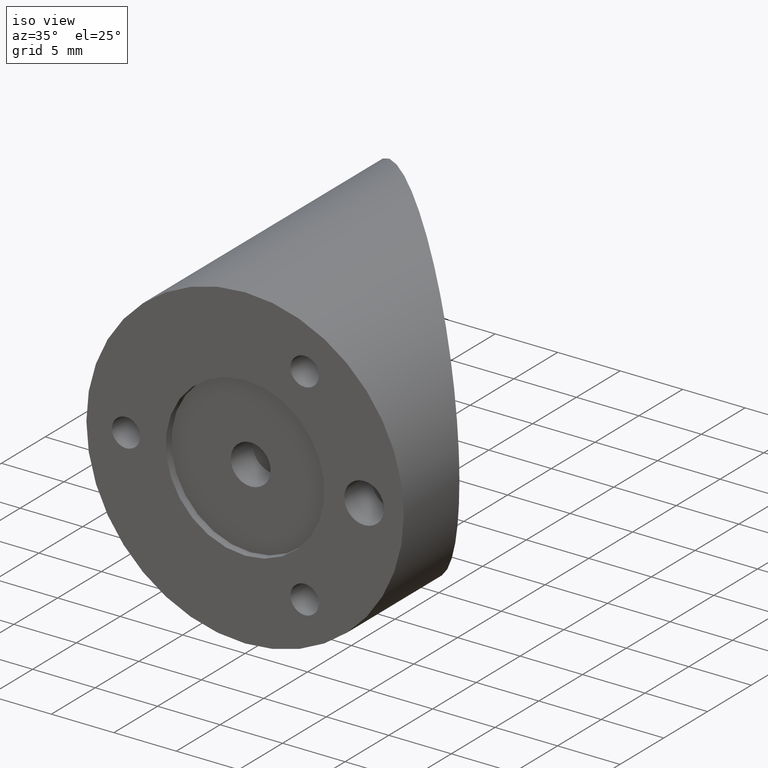
[diagram: clean part render]
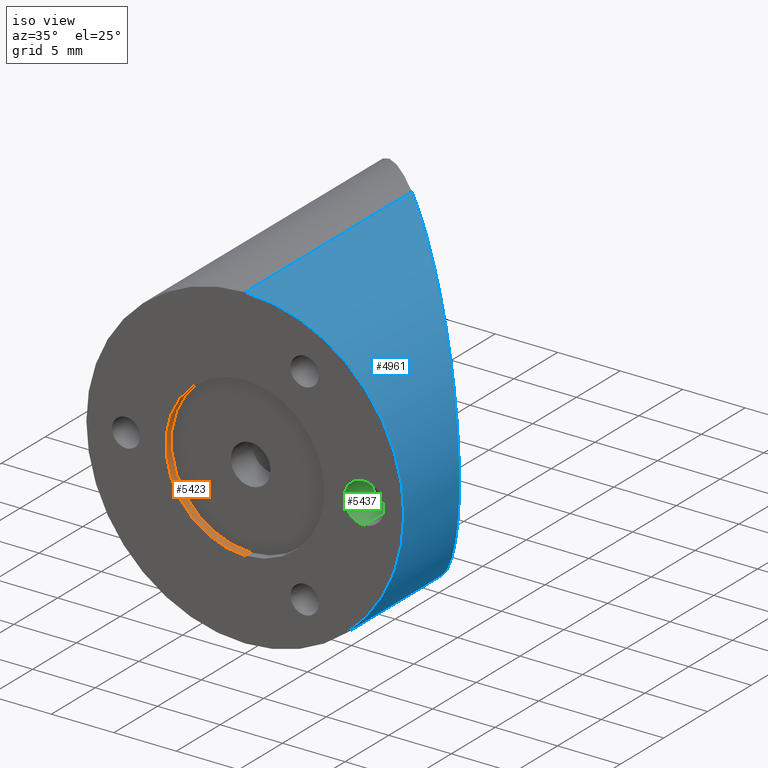
[diagram: same view with three faces highlighted in distinct colors, each labeled with its STEP entity id]
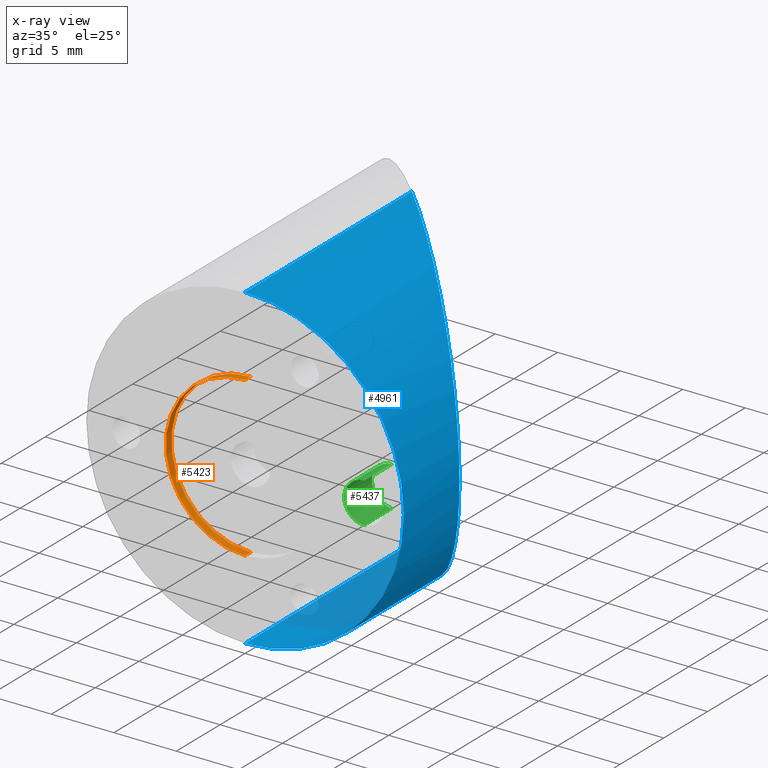
[diagram: x-ray of the same camera — body ghosted, the three highlighted faces saturated]
A machine part, iso view with three faces highlighted in distinct colors.
The next image is the same camera in x-ray (body ghosted, the three faces saturated) — at least one of them is partly hidden behind the body in this view.
Their STEP definitions:

[orange] entity #5423 — the highlighted cylindrical surface (partial cylindrical patch) has radius 6.35 mm, axis along (0, -1, 0).
#3547 = AXIS2_PLACEMENT_3D ( 'NONE', #3583, #3610, #3609 ) ;
#3576 = CIRCLE ( 'NONE', #3547, 6.349999999999999600 ) ;
#3583 = CARTESIAN_POINT ( 'NONE',  ( 0.0000000000000000000, 0.6350000000000000100, 0.0000000000000000000 ) ) ;
#3584 = DIRECTION ( 'NONE',  ( 0.0000000000000000000, -1.000000000000000000, 0.0000000000000000000 ) ) ;
#3585 = VECTOR ( 'NONE', #3584, 1000.000000000000000 ) ;
#3586 = CARTESIAN_POINT ( 'NONE',  ( 7.776507174585692200E-016, 0.6350000000000000100, 6.349999999999999600 ) ) ;
#3587 = LINE ( 'NONE', #3586, #3585 ) ;
#3609 = DIRECTION ( 'NONE',  ( 0.0000000000000000000, 0.0000000000000000000, 1.000000000000000000 ) ) ;
#3610 = DIRECTION ( 'NONE',  ( 0.0000000000000000000, 1.000000000000000000, 0.0000000000000000000 ) ) ;
#3641 = DIRECTION ( 'NONE',  ( 0.0000000000000000000, -1.000000000000000000, 0.0000000000000000000 ) ) ;
#3642 = VECTOR ( 'NONE', #3641, 1000.000000000000000 ) ;
#3643 = DIRECTION ( 'NONE',  ( 0.0000000000000000000, 0.0000000000000000000, 1.000000000000000000 ) ) ;
#3644 = DIRECTION ( 'NONE',  ( 0.0000000000000000000, 1.000000000000000000, 0.0000000000000000000 ) ) ;
#3645 = CARTESIAN_POINT ( 'NONE',  ( 0.0000000000000000000, 0.0000000000000000000, 0.0000000000000000000 ) ) ;
#3646 = AXIS2_PLACEMENT_3D ( 'NONE', #3645, #3644, #3643 ) ;
#3647 = CIRCLE ( 'NONE', #3646, 6.349999999999999600 ) ;
#3648 = CARTESIAN_POINT ( 'NONE',  ( 0.0000000000000000000, 0.6350000000000000100, -6.349999999999999600 ) ) ;
#3649 = LINE ( 'NONE', #3648, #3642 ) ;
#3871 = CARTESIAN_POINT ( 'NONE',  ( 0.0000000000000000000, 0.6350000000000000100, -6.349999999999999600 ) ) ;
#3878 = CARTESIAN_POINT ( 'NONE',  ( 7.776507174585692200E-016, 0.6350000000000000100, 6.349999999999999600 ) ) ;
#3930 = CARTESIAN_POINT ( 'NONE',  ( 7.776507174585692200E-016, 0.0000000000000000000, 6.349999999999999600 ) ) ;
#3936 = CARTESIAN_POINT ( 'NONE',  ( 0.0000000000000000000, 0.0000000000000000000, -6.349999999999999600 ) ) ;
#3956 = DIRECTION ( 'NONE',  ( 0.0000000000000000000, 0.0000000000000000000, -1.000000000000000000 ) ) ;
#3959 = DIRECTION ( 'NONE',  ( 0.0000000000000000000, -1.000000000000000000, 0.0000000000000000000 ) ) ;
#3960 = CARTESIAN_POINT ( 'NONE',  ( 0.0000000000000000000, 0.6350000000000000100, 0.0000000000000000000 ) ) ;
#3961 = FACE_OUTER_BOUND ( 'NONE', #5432, .T. ) ;
#3967 = CYLINDRICAL_SURFACE ( 'NONE', #3972, 6.349999999999999600 ) ;
#3972 = AXIS2_PLACEMENT_3D ( 'NONE', #3960, #3959, #3956 ) ;
#5351 = ORIENTED_EDGE ( 'NONE', *, *, #5353, .T. ) ;
#5352 = EDGE_CURVE ( 'NONE', #5391, #5412, #3587, .T. ) ;
#5353 = EDGE_CURVE ( 'NONE', #5396, #5391, #3576, .T. ) ;
#5355 = EDGE_CURVE ( 'NONE', #5411, #5412, #3647, .T. ) ;
#5356 = EDGE_CURVE ( 'NONE', #5396, #5411, #3649, .T. ) ;
#5391 = VERTEX_POINT ( 'NONE', #3878 ) ;
#5396 = VERTEX_POINT ( 'NONE', #3871 ) ;
#5411 = VERTEX_POINT ( 'NONE', #3936 ) ;
#5412 = VERTEX_POINT ( 'NONE', #3930 ) ;
#5423 = ADVANCED_FACE ( 'NONE', ( #3961 ), #3967, .F. ) ;
#5424 = ORIENTED_EDGE ( 'NONE', *, *, #5352, .T. ) ;
#5431 = ORIENTED_EDGE ( 'NONE', *, *, #5355, .F. ) ;
#5432 = EDGE_LOOP ( 'NONE', ( #5351, #5424, #5431, #5435 ) ) ;
#5435 = ORIENTED_EDGE ( 'NONE', *, *, #5356, .F. ) ;

[blue] entity #4961 — the highlighted cylindrical surface (partial cylindrical patch) has radius 12.7 mm, axis along (-0, -1, -0).
#1970 = DIRECTION ( 'NONE',  ( 0.0000000000000000000, 0.0000000000000000000, -1.000000000000000000 ) ) ;
#1971 = DIRECTION ( 'NONE',  ( -0.0000000000000000000, -1.000000000000000000, -0.0000000000000000000 ) ) ;
#1972 = CARTESIAN_POINT ( 'NONE',  ( 0.0000000000000000000, 36.68999999999999800, 0.0000000000000000000 ) ) ;
#1973 = AXIS2_PLACEMENT_3D ( 'NONE', #1972, #1971, #1970 ) ;
#1976 = CYLINDRICAL_SURFACE ( 'NONE', #1973, 12.69999999999999900 ) ;
#1982 = FACE_OUTER_BOUND ( 'NONE', #5016, .T. ) ;
#2371 = CARTESIAN_POINT ( 'NONE',  ( 0.0000000000000000000, 0.0000000000000000000, -12.69999999999999900 ) ) ;
#2374 = AXIS2_PLACEMENT_3D ( 'NONE', #2457, #2449, #2448 ) ;
#2406 = CARTESIAN_POINT ( 'NONE',  ( 1.555301434917138400E-015, 0.0000000000000000000, 12.69999999999999900 ) ) ;
#2437 = CIRCLE ( 'NONE', #2374, 12.69999999999999900 ) ;
#2439 = DIRECTION ( 'NONE',  ( -0.0000000000000000000, -1.000000000000000000, -0.0000000000000000000 ) ) ;
#2440 = VECTOR ( 'NONE', #2439, 1000.000000000000000 ) ;
#2441 = CARTESIAN_POINT ( 'NONE',  ( 1.555301434917138400E-015, 36.68999999999999800, 12.69999999999999900 ) ) ;
#2446 = LINE ( 'NONE', #2441, #2440 ) ;
#2448 = DIRECTION ( 'NONE',  ( 0.0000000000000000000, 0.0000000000000000000, 1.000000000000000000 ) ) ;
#2449 = DIRECTION ( 'NONE',  ( 0.0000000000000000000, 1.000000000000000000, 0.0000000000000000000 ) ) ;
#2452 = CARTESIAN_POINT ( 'NONE',  ( 1.073295098630292200E-011, 19.05375000000564300, -12.69999999999971300 ) ) ;
#2453 = DIRECTION ( 'NONE',  ( -0.0000000000000000000, -1.000000000000000000, -0.0000000000000000000 ) ) ;
#2454 = VECTOR ( 'NONE', #2453, 1000.000000000000000 ) ;
#2455 = CARTESIAN_POINT ( 'NONE',  ( 0.0000000000000000000, 36.68999999999999800, -12.69999999999999900 ) ) ;
#2456 = LINE ( 'NONE', #2455, #2454 ) ;
#2457 = CARTESIAN_POINT ( 'NONE',  ( 0.0000000000000000000, 0.0000000000000000000, 0.0000000000000000000 ) ) ;
#2800 = CARTESIAN_POINT ( 'NONE',  ( 6.599079892768514800, 12.45467010724806300, -10.85764775449460000 ) ) ;
#2801 = CARTESIAN_POINT ( 'NONE',  ( 6.928482112657713200, 12.12526788735882000, -10.65076011736241800 ) ) ;
#2802 = CARTESIAN_POINT ( 'NONE',  ( 7.569888742416192300, 11.48386125760033800, -10.20486844062462400 ) ) ;
#2803 = CARTESIAN_POINT ( 'NONE',  ( 7.883226184303367700, 11.17052381571272200, -9.965160907898976500 ) ) ;
#2804 = CARTESIAN_POINT ( 'NONE',  ( 8.799572855978244200, 10.25417714403784500, -9.192185024529719000 ) ) ;
#2805 = CARTESIAN_POINT ( 'NONE',  ( 9.379392896092035400, 9.674357103924661400, -8.606147625308180300 ) ) ;
#2806 = CARTESIAN_POINT ( 'NONE',  ( 10.46006282811218000, 8.593687171904514700, -7.254369282012405900 ) ) ;
#2807 = CARTESIAN_POINT ( 'NONE',  ( 10.94358882695890900, 8.110161173057456100, -6.509932970497108500 ) ) ;
#2808 = CARTESIAN_POINT ( 'NONE',  ( 11.45986508102121500, 7.593884918995141400, -5.478567564210533400 ) ) ;
#2809 = CARTESIAN_POINT ( 'NONE',  ( 11.55868350159210700, 7.495066498424801400, -5.267139652423518100 ) ) ;
#2810 = CARTESIAN_POINT ( 'NONE',  ( 11.74675885290316500, 7.306991147113746100, -4.833175028886379300 ) ) ;
#2811 = CARTESIAN_POINT ( 'NONE',  ( 11.83622547510302600, 7.217524524912693800, -4.609958047788526700 ) ) ;
#2812 = CARTESIAN_POINT ( 'NONE',  ( 12.08551602448123100, 6.968233975534488400, -3.932186315710369100 ) ) ;
#2813 = CARTESIAN_POINT ( 'NONE',  ( 12.22749506670874800, 6.826254933307229300, -3.467185301981261500 ) ) ;
#2814 = CARTESIAN_POINT ( 'NONE',  ( 12.40147096061078900, 6.652279039405190300, -2.748503300757524100 ) ) ;
#2815 = CARTESIAN_POINT ( 'NONE',  ( 12.45294631151671700, 6.600803688498941400, -2.505402865495646400 ) ) ;
#2818 = CARTESIAN_POINT ( 'NONE',  ( 12.54216144430636400, 6.511588555709297000, -2.011740952733863400 ) ) ;
#2819 = CARTESIAN_POINT ( 'NONE',  ( 12.57995465248147400, 6.473795347535727300, -1.760284237810619200 ) ) ;
#2820 = CARTESIAN_POINT ( 'NONE',  ( 12.67005505108533100, 6.383694948931870200, -1.007543362733651200 ) ) ;
#2821 = CARTESIAN_POINT ( 'NONE',  ( 12.70000000000087100, 6.353750000015508300, -0.5044172806110095400 ) ) ;
#2822 = CARTESIAN_POINT ( 'NONE',  ( 12.70000000000023400, 6.353750000016145100, 1.602868948680232200E-011 ) ) ;
#2823 = B_SPLINE_CURVE_WITH_KNOTS ( 'NONE', 3,
 ( #2822, #2821, #2820, #2819, #2818, #2815, #2814, #2813, #2812, #2811, #2810, #2809, #2808, #2807, #2806, #2805, #2804, #2803, #2802, #2801, #2800, #2859, #2858, #2857, #2856, #2855, #2854, #2853, #2852, #2851 ),
 .UNSPECIFIED., .F., .F.,
 ( 4, 2, 2, 2, 2, 2, 2, 2, 2, 2, 2, 2, 2, 2, 4 ),
 ( 0.04838798220624486400, 0.04989858502457449100, 0.05065388643373930400, 0.05140918784290411000, 0.05291979066123373600, 0.05367509207039854900, 0.05443039347956335500, 0.05745159911622260700, 0.06047280475288185900, 0.06198340757121148500, 0.06349401038954111100, 0.06651521602620034900, 0.06953642166285958800, 0.07104702448118921400, 0.07255762729951884000 ),
 .UNSPECIFIED. ) ;
#2851 = CARTESIAN_POINT ( 'NONE',  ( 1.073295098630292200E-011, 19.05375000000564300, -12.69999999999971300 ) ) ;
#2852 = CARTESIAN_POINT ( 'NONE',  ( 0.3559999177338322200, 18.69775008228256800, -12.69999999999968300 ) ) ;
#2853 = CARTESIAN_POINT ( 'NONE',  ( 0.7128693906184230300, 18.34088060939783600, -12.68505918974863000 ) ) ;
#2854 = CARTESIAN_POINT ( 'NONE',  ( 1.428392377802600600, 17.62535762221365600, -12.62452393678835900 ) ) ;
#2855 = CARTESIAN_POINT ( 'NONE',  ( 1.786133609362762200, 17.26761639065324500, -12.57890556704122900 ) ) ;
#2856 = CARTESIAN_POINT ( 'NONE',  ( 2.848788593822412000, 16.20496140619359700, -12.39721572321217900 ) ) ;
#2857 = CARTESIAN_POINT ( 'NONE',  ( 3.547234450087773300, 15.50651554992862200, -12.21636932480826600 ) ) ;
#2858 = CARTESIAN_POINT ( 'NONE',  ( 4.923209024338469000, 14.13054097567792800, -11.72964469311318300 ) ) ;
#2859 = CARTESIAN_POINT ( 'NONE',  ( 5.600770071422214600, 13.45297992859436900, -11.42395970643810400 ) ) ;
#3793 = CARTESIAN_POINT ( 'NONE',  ( -1.753263333126320700E-012, 19.05375000001852100, 12.70000000000025000 ) ) ;
#3863 = CARTESIAN_POINT ( 'NONE',  ( 1.425506101229625500, 17.62824389878650100, 12.62482813555862800 ) ) ;
#3864 = CARTESIAN_POINT ( 'NONE',  ( 0.7115186284303928200, 18.34223137158572900, 12.68511309915808700 ) ) ;
#3865 = CARTESIAN_POINT ( 'NONE',  ( 0.3553545233585980200, 18.69839547665814500, 12.70000000000005800 ) ) ;
#3866 = CARTESIAN_POINT ( 'NONE',  ( -1.753263333126320700E-012, 19.05375000001852100, 12.70000000000025000 ) ) ;
#3867 = B_SPLINE_CURVE_WITH_KNOTS ( 'NONE', 3,
 ( #3866, #3865, #3864, #3863, #3919, #3918, #3917, #3916, #3915, #3914, #3913, #3912, #3911, #3910, #3909, #3908, #3907, #3906, #3905, #3904, #3903, #3902, #3901, #3900, #3899, #3898, #3897, #3896, #3895, #3894 ),
 .UNSPECIFIED., .F., .F.,
 ( 4, 2, 2, 2, 2, 2, 2, 2, 2, 2, 2, 2, 2, 2, 4 ),
 ( 0.02419946178127503600, 0.02571124430783565400, 0.02722302683439627200, 0.03024659188751749700, 0.03327015694063872200, 0.03478193946719933300, 0.03629372199375995000, 0.03931728704688117900, 0.04082906957344179000, 0.04234085210000240700, 0.04385263462656302500, 0.04536441715312364300, 0.04687619967968425400, 0.04763209094296455600, 0.04838798220624486400 ),
 .UNSPECIFIED. ) ;
#3894 = CARTESIAN_POINT ( 'NONE',  ( 12.70000000000023400, 6.353750000016145100, 1.602868948680232200E-011 ) ) ;
#3895 = CARTESIAN_POINT ( 'NONE',  ( 12.69999999999991800, 6.353750000016464800, 0.2524056031614154100 ) ) ;
#3896 = CARTESIAN_POINT ( 'NONE',  ( 12.69248225410692000, 6.361267745910270200, 0.5051353645574104800 ) ) ;
#3897 = CARTESIAN_POINT ( 'NONE',  ( 12.66221297392122700, 6.391537026095974700, 1.011251754216921700 ) ) ;
#3898 = CARTESIAN_POINT ( 'NONE',  ( 12.63931500635822800, 6.414434993658104200, 1.265761365832677000 ) ) ;
#3899 = CARTESIAN_POINT ( 'NONE',  ( 12.54830468945343300, 6.505445310562894400, 2.021828895184285500 ) ) ;
#3900 = CARTESIAN_POINT ( 'NONE',  ( 12.45874381187088700, 6.595006188146864900, 2.512321702090750900 ) ) ;
#3901 = CARTESIAN_POINT ( 'NONE',  ( 12.22704340532995800, 6.826706594687794700, 3.468640550533373300 ) ) ;
#3902 = CARTESIAN_POINT ( 'NONE',  ( 12.08487534965748200, 6.968874650358878300, 3.934453209037877200 ) ) ;
#3903 = CARTESIAN_POINT ( 'NONE',  ( 11.75046716739118800, 7.303282832625170000, 4.842587698630669700 ) ) ;
#3904 = CARTESIAN_POINT ( 'NONE',  ( 11.56201975668329900, 7.491730243333476500, 5.274679716940131200 ) ) ;
#3905 = CARTESIAN_POINT ( 'NONE',  ( 11.14913429996790300, 7.904615700048874600, 6.099127095864925100 ) ) ;
#3906 = CARTESIAN_POINT ( 'NONE',  ( 10.92453857279676800, 8.129211427220338800, 6.491774042989980800 ) ) ;
#3907 = CARTESIAN_POINT ( 'NONE',  ( 10.44253972988088800, 8.611210270136227900, 7.241687458294664200 ) ) ;
#3908 = CARTESIAN_POINT ( 'NONE',  ( 10.18359195560270300, 8.870158044412653100, 7.600653494619119300 ) ) ;
#3909 = CARTESIAN_POINT ( 'NONE',  ( 9.376145998089699100, 9.677604001925651300, 8.609285735563714700 ) ) ;
#3910 = CARTESIAN_POINT ( 'NONE',  ( 8.795961604366123500, 10.25778839565007200, 9.195963059963208500 ) ) ;
#3911 = CARTESIAN_POINT ( 'NONE',  ( 7.874827980435712900, 11.17892201958048500, 9.971873122185888500 ) ) ;
#3912 = CARTESIAN_POINT ( 'NONE',  ( 7.558758466611337200, 11.49499153340523000, 10.21322209351403000 ) ) ;
#3913 = CARTESIAN_POINT ( 'NONE',  ( 6.912196568876535000, 12.14155343114003200, 10.66143863093640400 ) ) ;
#3914 = CARTESIAN_POINT ( 'NONE',  ( 6.585142786169006600, 12.46860721384716400, 10.86600459586555300 ) ) ;
#3915 = CARTESIAN_POINT ( 'NONE',  ( 5.593803949766870800, 13.45994605024929000, 11.42698573281844800 ) ) ;
#3916 = CARTESIAN_POINT ( 'NONE',  ( 4.919424675196721000, 14.13432532482010000, 11.73111545066778300 ) ) ;
#3917 = CARTESIAN_POINT ( 'NONE',  ( 3.546914930869681900, 15.50683506914715100, 12.21634983638748500 ) ) ;
#3918 = CARTESIAN_POINT ( 'NONE',  ( 2.848753924762737400, 16.20499607525341500, 12.39729633385144500 ) ) ;
#3919 = CARTESIAN_POINT ( 'NONE',  ( 1.784229245425802000, 17.26952075459036400, 12.57919372726496100 ) ) ;
#4186 = CARTESIAN_POINT ( 'NONE',  ( 12.70000000000023400, 6.353750000016145100, 1.602868948680232200E-011 ) ) ;
#4916 = ORIENTED_EDGE ( 'NONE', *, *, #5152, .T. ) ;
#4961 = ADVANCED_FACE ( 'NONE', ( #1982 ), #1976, .T. ) ;
#4962 = ORIENTED_EDGE ( 'NONE', *, *, #5394, .F. ) ;
#5016 = EDGE_LOOP ( 'NONE', ( #4962, #4916, #5151, #5198, #5147 ) ) ;
#5141 = VERTEX_POINT ( 'NONE', #2371 ) ;
#5142 = VERTEX_POINT ( 'NONE', #2406 ) ;
#5143 = EDGE_CURVE ( 'NONE', #5150, #5141, #2456, .T. ) ;
#5144 = EDGE_CURVE ( 'NONE', #5142, #5141, #2437, .T. ) ;
#5147 = ORIENTED_EDGE ( 'NONE', *, *, #5199, .F. ) ;
#5150 = VERTEX_POINT ( 'NONE', #2452 ) ;
#5151 = ORIENTED_EDGE ( 'NONE', *, *, #5144, .T. ) ;
#5152 = EDGE_CURVE ( 'NONE', #5395, #5142, #2446, .T. ) ;
#5198 = ORIENTED_EDGE ( 'NONE', *, *, #5143, .F. ) ;
#5199 = EDGE_CURVE ( 'NONE', #5487, #5150, #2823, .T. ) ;
#5394 = EDGE_CURVE ( 'NONE', #5395, #5487, #3867, .T. ) ;
#5395 = VERTEX_POINT ( 'NONE', #3793 ) ;
#5487 = VERTEX_POINT ( 'NONE', #4186 ) ;

[green] entity #5437 — the highlighted cylindrical surface (edge-blend (fillet) strip) has radius 1.5939 mm, axis along (0, -1, 0).
#3263 = DIRECTION ( 'NONE',  ( 0.0000000000000000000, 1.000000000000000000, 0.0000000000000000000 ) ) ;
#3265 = DIRECTION ( 'NONE',  ( 0.0000000000000000000, 0.0000000000000000000, 1.000000000000000000 ) ) ;
#3637 = DIRECTION ( 'NONE',  ( 0.0000000000000000000, -1.000000000000000000, 0.0000000000000000000 ) ) ;
#3638 = VECTOR ( 'NONE', #3637, 1000.000000000000000 ) ;
#3639 = CARTESIAN_POINT ( 'NONE',  ( 9.524999999999998600, 3.174999999999999800, -1.593850000000001500 ) ) ;
#3640 = LINE ( 'NONE', #3639, #3638 ) ;
#3949 = CARTESIAN_POINT ( 'NONE',  ( 9.524999999999998600, 3.174999999999999800, -1.593850000000001500 ) ) ;
#3971 = CARTESIAN_POINT ( 'NONE',  ( 9.524999999999998600, 0.0000000000000000000, 1.593850000000001500 ) ) ;
#3977 = CIRCLE ( 'NONE', #4022, 1.593850000000001500 ) ;
#4017 = CARTESIAN_POINT ( 'NONE',  ( 9.524999999999998600, 3.174999999999999800, 0.0000000000000000000 ) ) ;
#4018 = AXIS2_PLACEMENT_3D ( 'NONE', #4017, #3263, #3265 ) ;
#4019 = DIRECTION ( 'NONE',  ( 0.0000000000000000000, 0.0000000000000000000, 1.000000000000000000 ) ) ;
#4020 = DIRECTION ( 'NONE',  ( 0.0000000000000000000, 1.000000000000000000, 0.0000000000000000000 ) ) ;
#4021 = CARTESIAN_POINT ( 'NONE',  ( 9.524999999999998600, 0.0000000000000000000, 0.0000000000000000000 ) ) ;
#4022 = AXIS2_PLACEMENT_3D ( 'NONE', #4021, #4020, #4019 ) ;
#4023 = CIRCLE ( 'NONE', #4018, 1.593850000000001500 ) ;
#4031 = DIRECTION ( 'NONE',  ( 0.0000000000000000000, -1.000000000000000000, 0.0000000000000000000 ) ) ;
#4032 = VECTOR ( 'NONE', #4031, 1000.000000000000000 ) ;
#4033 = CARTESIAN_POINT ( 'NONE',  ( 9.524999999999998600, 3.174999999999999800, 1.593850000000001500 ) ) ;
#4034 = LINE ( 'NONE', #4033, #4032 ) ;
#4035 = CARTESIAN_POINT ( 'NONE',  ( 9.524999999999998600, 0.0000000000000000000, -1.593850000000001500 ) ) ;
#4037 = CARTESIAN_POINT ( 'NONE',  ( 9.524999999999998600, 3.174999999999999800, 1.593850000000001500 ) ) ;
#4038 = DIRECTION ( 'NONE',  ( 0.0000000000000000000, 0.0000000000000000000, -1.000000000000000000 ) ) ;
#4039 = DIRECTION ( 'NONE',  ( 0.0000000000000000000, -1.000000000000000000, 0.0000000000000000000 ) ) ;
#4040 = CARTESIAN_POINT ( 'NONE',  ( 9.524999999999998600, 3.174999999999999800, 0.0000000000000000000 ) ) ;
#4046 = AXIS2_PLACEMENT_3D ( 'NONE', #4040, #4039, #4038 ) ;
#4047 = CYLINDRICAL_SURFACE ( 'NONE', #4046, 1.593850000000001500 ) ;
#4048 = FACE_OUTER_BOUND ( 'NONE', #5358, .T. ) ;
#5357 = EDGE_CURVE ( 'NONE', #5420, #5443, #3640, .T. ) ;
#5358 = EDGE_LOOP ( 'NONE', ( #5439, #5444, #5447, #5445 ) ) ;
#5415 = VERTEX_POINT ( 'NONE', #3971 ) ;
#5420 = VERTEX_POINT ( 'NONE', #3949 ) ;
#5434 = EDGE_CURVE ( 'NONE', #5443, #5415, #3977, .T. ) ;
#5436 = EDGE_CURVE ( 'NONE', #5420, #5438, #4023, .T. ) ;
#5437 = ADVANCED_FACE ( 'NONE', ( #4048 ), #4047, .F. ) ;
#5438 = VERTEX_POINT ( 'NONE', #4037 ) ;
#5439 = ORIENTED_EDGE ( 'NONE', *, *, #5436, .T. ) ;
#5440 = EDGE_CURVE ( 'NONE', #5438, #5415, #4034, .T. ) ;
#5443 = VERTEX_POINT ( 'NONE', #4035 ) ;
#5444 = ORIENTED_EDGE ( 'NONE', *, *, #5440, .T. ) ;
#5445 = ORIENTED_EDGE ( 'NONE', *, *, #5357, .F. ) ;
#5447 = ORIENTED_EDGE ( 'NONE', *, *, #5434, .F. ) ;